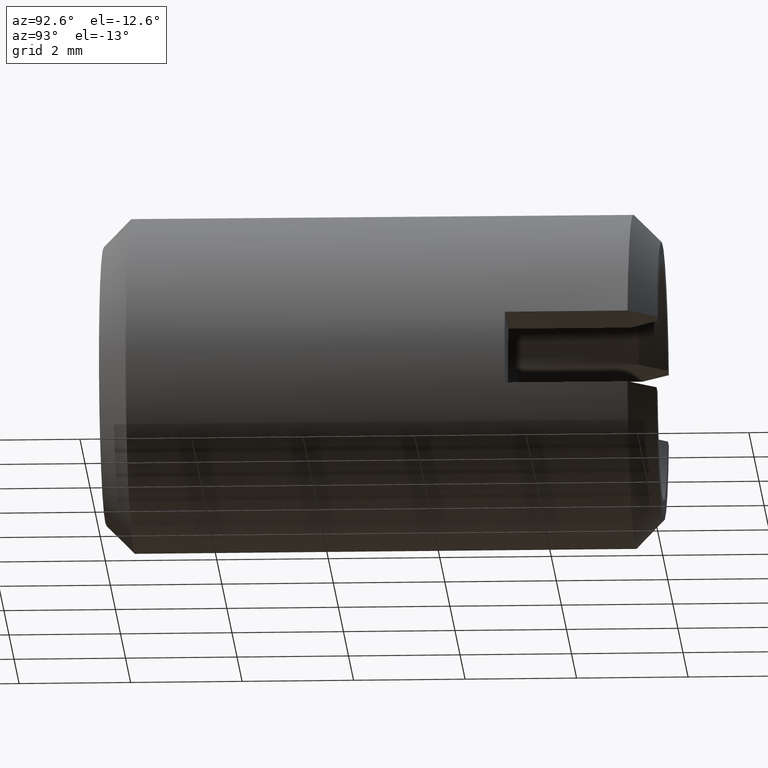
[diagram: clean part render]
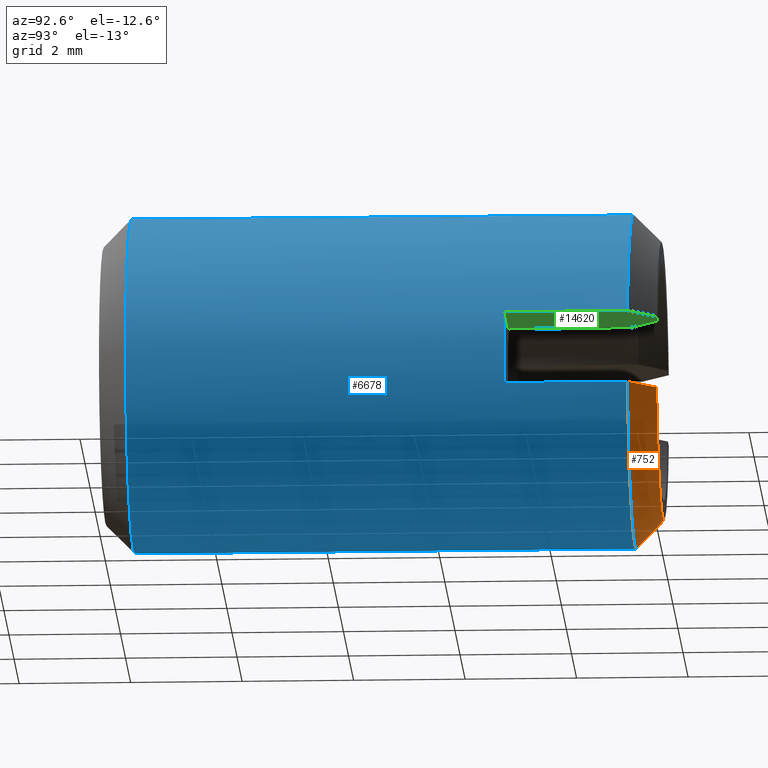
[diagram: same view with three faces highlighted in distinct colors, each labeled with its STEP entity id]
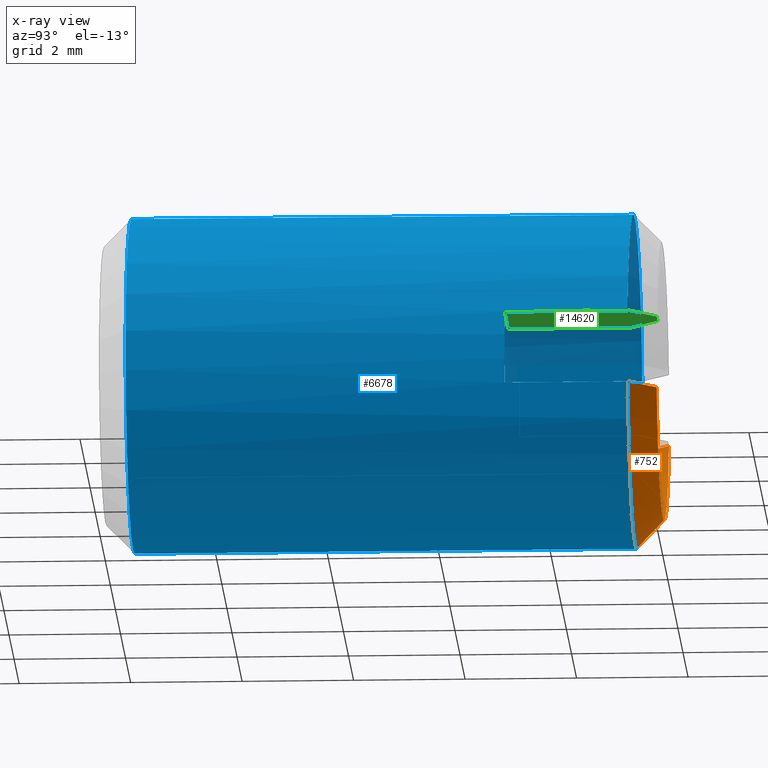
[diagram: x-ray of the same camera — body ghosted, the three highlighted faces saturated]
A machine part, auxiliary view with three faces highlighted in distinct colors.
The next image is the same camera in x-ray (body ghosted, the three faces saturated) — at least one of them is partly hidden behind the body in this view.
Their STEP definitions:

[orange] entity #752 — the highlighted conical surface has half-angle 45 deg.
#95 = CARTESIAN_POINT ( 'NONE',  ( 2.928736929121494600, 9.500000000000000000, -0.6500000000000001300 ) ) ;
#247 = VERTEX_POINT ( 'NONE', #6610 ) ;
#421 = DIRECTION ( 'NONE',  ( 0.0000000000000000000, 1.000000000000000000, 0.0000000000000000000 ) ) ;
#752 = ADVANCED_FACE ( 'NONE', ( #12432 ), #2395, .T. ) ;
#2395 = CONICAL_SURFACE ( 'NONE', #12111, 3.000000000000000000, 0.7853981633974500600 ) ;
#2588 = VERTEX_POINT ( 'NONE', #14591 ) ;
#2745 = B_SPLINE_CURVE_WITH_KNOTS ( 'NONE', 3,
 ( #12679, #5396, #2802, #9061 ),
 .UNSPECIFIED., .F., .F.,
 ( 4, 4 ),
 ( 0.01200799052394914200, 0.01272352744226161100 ),
 .UNSPECIFIED. ) ;
#2802 = CARTESIAN_POINT ( 'NONE',  ( -2.757581466765123500, 9.667089774407989100, -0.6499999999999994700 ) ) ;
#3609 = EDGE_CURVE ( 'NONE', #247, #2588, #11439, .T. ) ;
#3989 = VERTEX_POINT ( 'NONE', #12477 ) ;
#4845 = EDGE_CURVE ( 'NONE', #14891, #3989, #10666, .T. ) ;
#5396 = CARTESIAN_POINT ( 'NONE',  ( -2.586095618865053700, 9.833843787677890800, -0.6499999999999994700 ) ) ;
#5546 = EDGE_CURVE ( 'NONE', #3989, #247, #14303, .T. ) ;
#6371 = DIRECTION ( 'NONE',  ( 0.0000000000000000000, 0.0000000000000000000, 1.000000000000000000 ) ) ;
#6481 = CARTESIAN_POINT ( 'NONE',  ( 0.0000000000000000000, 9.500000000000000000, 0.0000000000000000000 ) ) ;
#6610 = CARTESIAN_POINT ( 'NONE',  ( 2.414021540914660100, 10.00000000000000000, -0.6500000000000001300 ) ) ;
#6651 = DIRECTION ( 'NONE',  ( -0.0000000000000000000, -1.000000000000000000, -0.0000000000000000000 ) ) ;
#7253 = CARTESIAN_POINT ( 'NONE',  ( 2.414021540914660100, 10.00000000000000000, -0.6500000000000001300 ) ) ;
#7297 = CARTESIAN_POINT ( 'NONE',  ( 2.757578815405588500, 9.667092362786181800, -0.6500000000000001300 ) ) ;
#7661 = CARTESIAN_POINT ( 'NONE',  ( 0.0000000000000000000, 10.00000000000000000, 0.0000000000000000000 ) ) ;
#7718 = DIRECTION ( 'NONE',  ( 0.0000000000000000000, 0.0000000000000000000, 1.000000000000000000 ) ) ;
#8013 = EDGE_LOOP ( 'NONE', ( #10440, #8153, #14981, #8222 ) ) ;
#8153 = ORIENTED_EDGE ( 'NONE', *, *, #4845, .F. ) ;
#8222 = ORIENTED_EDGE ( 'NONE', *, *, #3609, .F. ) ;
#8466 = CARTESIAN_POINT ( 'NONE',  ( 2.586092403099345300, 9.833846892848965700, -0.6500000000000001300 ) ) ;
#8470 = AXIS2_PLACEMENT_3D ( 'NONE', #6481, #10140, #6371 ) ;
#9061 = CARTESIAN_POINT ( 'NONE',  ( -2.928736929121496900, 9.499999999999998200, -0.6499999999999994700 ) ) ;
#10140 = DIRECTION ( 'NONE',  ( -0.0000000000000000000, -1.000000000000000000, -0.0000000000000000000 ) ) ;
#10440 = ORIENTED_EDGE ( 'NONE', *, *, #5546, .F. ) ;
#10666 = CIRCLE ( 'NONE', #8470, 3.000000000000000000 ) ;
#11182 = CARTESIAN_POINT ( 'NONE',  ( -2.928736929121496900, 9.499999999999998200, -0.6499999999999994700 ) ) ;
#11311 = CARTESIAN_POINT ( 'NONE',  ( 0.0000000000000000000, 9.500000000000000000, 0.0000000000000000000 ) ) ;
#11439 = CIRCLE ( 'NONE', #11490, 2.499999999999997800 ) ;
#11490 = AXIS2_PLACEMENT_3D ( 'NONE', #7661, #421, #7718 ) ;
#11969 = EDGE_CURVE ( 'NONE', #2588, #14891, #2745, .T. ) ;
#12111 = AXIS2_PLACEMENT_3D ( 'NONE', #11311, #6651, #13684 ) ;
#12432 = FACE_OUTER_BOUND ( 'NONE', #8013, .T. ) ;
#12477 = CARTESIAN_POINT ( 'NONE',  ( 2.928736929121494600, 9.500000000000000000, -0.6500000000000001300 ) ) ;
#12679 = CARTESIAN_POINT ( 'NONE',  ( -2.414021540914660100, 10.00000000000000000, -0.6499999999999994700 ) ) ;
#13684 = DIRECTION ( 'NONE',  ( 0.0000000000000000000, 0.0000000000000000000, -1.000000000000000000 ) ) ;
#14303 = B_SPLINE_CURVE_WITH_KNOTS ( 'NONE', 3,
 ( #95, #7297, #8466, #7253 ),
 .UNSPECIFIED., .F., .F.,
 ( 4, 4 ),
 ( 0.005136716158415988200, 0.005854303722699023000 ),
 .UNSPECIFIED. ) ;
#14591 = CARTESIAN_POINT ( 'NONE',  ( -2.414021540914660100, 10.00000000000000000, -0.6499999999999994700 ) ) ;
#14891 = VERTEX_POINT ( 'NONE', #11182 ) ;
#14981 = ORIENTED_EDGE ( 'NONE', *, *, #11969, .F. ) ;

[blue] entity #6678 — the highlighted cylindrical surface (bore or boss wall) has radius 3 mm, axis along (-0, -1, -0).
#936 = CIRCLE ( 'NONE', #15476, 3.000000000000000000 ) ;
#1006 = DIRECTION ( 'NONE',  ( -0.0000000000000000000, -1.000000000000000000, -0.0000000000000000000 ) ) ;
#1126 = CIRCLE ( 'NONE', #1577, 3.000000000000000000 ) ;
#1311 = VERTEX_POINT ( 'NONE', #13951 ) ;
#1436 = LINE ( 'NONE', #10542, #13926 ) ;
#1437 = ORIENTED_EDGE ( 'NONE', *, *, #11264, .T. ) ;
#1442 = EDGE_CURVE ( 'NONE', #1311, #2469, #7314, .T. ) ;
#1491 = EDGE_CURVE ( 'NONE', #14891, #6876, #1436, .T. ) ;
#1577 = AXIS2_PLACEMENT_3D ( 'NONE', #15683, #3372, #9374 ) ;
#1696 = FACE_OUTER_BOUND ( 'NONE', #9050, .T. ) ;
#2081 = VECTOR ( 'NONE', #11027, 1000.000000000000000 ) ;
#2115 = CARTESIAN_POINT ( 'NONE',  ( -2.928736929121493700, 0.0000000000000000000, 0.6500000000000002400 ) ) ;
#2188 = CIRCLE ( 'NONE', #2367, 3.000000000000000000 ) ;
#2216 = EDGE_CURVE ( 'NONE', #6876, #1311, #2188, .T. ) ;
#2367 = AXIS2_PLACEMENT_3D ( 'NONE', #12458, #9915, #12244 ) ;
#2469 = VERTEX_POINT ( 'NONE', #15617 ) ;
#2558 = CARTESIAN_POINT ( 'NONE',  ( 0.0000000000000000000, 0.0000000000000000000, 0.0000000000000000000 ) ) ;
#2565 = CARTESIAN_POINT ( 'NONE',  ( -2.928736929121494200, 7.299999999999999800, -0.6499999999999994700 ) ) ;
#3086 = DIRECTION ( 'NONE',  ( -0.0000000000000000000, 1.000000000000000000, -0.0000000000000000000 ) ) ;
#3372 = DIRECTION ( 'NONE',  ( -0.0000000000000000000, -1.000000000000000000, -0.0000000000000000000 ) ) ;
#3503 = ORIENTED_EDGE ( 'NONE', *, *, #1491, .F. ) ;
#3632 = VECTOR ( 'NONE', #1006, 1000.000000000000000 ) ;
#3935 = DIRECTION ( 'NONE',  ( 0.0000000000000000000, 0.0000000000000000000, -1.000000000000000000 ) ) ;
#3989 = VERTEX_POINT ( 'NONE', #12477 ) ;
#4059 = VECTOR ( 'NONE', #14319, 1000.000000000000000 ) ;
#4718 = LINE ( 'NONE', #11128, #2081 ) ;
#4845 = EDGE_CURVE ( 'NONE', #14891, #3989, #10666, .T. ) ;
#4902 = CARTESIAN_POINT ( 'NONE',  ( 2.928736929121494200, 7.299999999999999800, 0.6499999999999999100 ) ) ;
#5118 = ORIENTED_EDGE ( 'NONE', *, *, #1442, .F. ) ;
#5131 = ORIENTED_EDGE ( 'NONE', *, *, #12198, .T. ) ;
#5443 = CIRCLE ( 'NONE', #10529, 3.000000000000000000 ) ;
#5485 = DIRECTION ( 'NONE',  ( 4.440892098500626200E-015, 0.0000000000000000000, -1.000000000000000000 ) ) ;
#5861 = FACE_OUTER_BOUND ( 'NONE', #5979, .T. ) ;
#5979 = EDGE_LOOP ( 'NONE', ( #1437 ) ) ;
#6287 = CARTESIAN_POINT ( 'NONE',  ( 2.928736929121494200, 7.299999999999999800, -0.6500000000000001300 ) ) ;
#6313 = EDGE_CURVE ( 'NONE', #13269, #3989, #4718, .T. ) ;
#6371 = DIRECTION ( 'NONE',  ( 0.0000000000000000000, 0.0000000000000000000, 1.000000000000000000 ) ) ;
#6481 = CARTESIAN_POINT ( 'NONE',  ( 0.0000000000000000000, 9.500000000000000000, 0.0000000000000000000 ) ) ;
#6678 = ADVANCED_FACE ( 'NONE', ( #1696, #5861 ), #9846, .T. ) ;
#6851 = ORIENTED_EDGE ( 'NONE', *, *, #7714, .F. ) ;
#6876 = VERTEX_POINT ( 'NONE', #2565 ) ;
#7171 = ORIENTED_EDGE ( 'NONE', *, *, #4845, .T. ) ;
#7314 = LINE ( 'NONE', #2115, #4059 ) ;
#7508 = DIRECTION ( 'NONE',  ( 0.0000000000000000000, 1.000000000000000000, 0.0000000000000000000 ) ) ;
#7714 = EDGE_CURVE ( 'NONE', #11293, #11231, #8026, .T. ) ;
#8026 = LINE ( 'NONE', #15507, #3632 ) ;
#8470 = AXIS2_PLACEMENT_3D ( 'NONE', #6481, #10140, #6371 ) ;
#9050 = EDGE_LOOP ( 'NONE', ( #3503, #7171, #10519, #11131, #6851, #5131, #5118, #13408 ) ) ;
#9374 = DIRECTION ( 'NONE',  ( 0.0000000000000000000, 0.0000000000000000000, 1.000000000000000000 ) ) ;
#9469 = AXIS2_PLACEMENT_3D ( 'NONE', #2558, #11048, #13570 ) ;
#9846 = CYLINDRICAL_SURFACE ( 'NONE', #9469, 3.000000000000000000 ) ;
#9915 = DIRECTION ( 'NONE',  ( -0.0000000000000000000, 1.000000000000000000, -0.0000000000000000000 ) ) ;
#10140 = DIRECTION ( 'NONE',  ( -0.0000000000000000000, -1.000000000000000000, -0.0000000000000000000 ) ) ;
#10372 = CARTESIAN_POINT ( 'NONE',  ( 0.0000000000000000000, 7.299999999999999800, 0.0000000000000000000 ) ) ;
#10519 = ORIENTED_EDGE ( 'NONE', *, *, #6313, .F. ) ;
#10529 = AXIS2_PLACEMENT_3D ( 'NONE', #10372, #3086, #5485 ) ;
#10542 = CARTESIAN_POINT ( 'NONE',  ( -2.928736929121493700, 0.0000000000000000000, -0.6499999999999992500 ) ) ;
#10666 = CIRCLE ( 'NONE', #8470, 3.000000000000000000 ) ;
#11027 = DIRECTION ( 'NONE',  ( 0.0000000000000000000, 1.000000000000000000, 0.0000000000000000000 ) ) ;
#11048 = DIRECTION ( 'NONE',  ( -0.0000000000000000000, -1.000000000000000000, -0.0000000000000000000 ) ) ;
#11128 = CARTESIAN_POINT ( 'NONE',  ( 2.928736929121493700, 0.0000000000000000000, -0.6499999999999999100 ) ) ;
#11131 = ORIENTED_EDGE ( 'NONE', *, *, #12473, .F. ) ;
#11182 = CARTESIAN_POINT ( 'NONE',  ( -2.928736929121496900, 9.499999999999998200, -0.6499999999999994700 ) ) ;
#11231 = VERTEX_POINT ( 'NONE', #4902 ) ;
#11264 = EDGE_CURVE ( 'NONE', #11627, #11627, #936, .T. ) ;
#11293 = VERTEX_POINT ( 'NONE', #14691 ) ;
#11627 = VERTEX_POINT ( 'NONE', #12441 ) ;
#12198 = EDGE_CURVE ( 'NONE', #11293, #2469, #1126, .T. ) ;
#12244 = DIRECTION ( 'NONE',  ( 0.0000000000000000000, 0.0000000000000000000, -1.000000000000000000 ) ) ;
#12441 = CARTESIAN_POINT ( 'NONE',  ( 0.0000000000000000000, 0.5000000000000022200, -3.000000000000000000 ) ) ;
#12458 = CARTESIAN_POINT ( 'NONE',  ( 0.0000000000000000000, 7.299999999999999800, 0.0000000000000000000 ) ) ;
#12473 = EDGE_CURVE ( 'NONE', #11231, #13269, #5443, .T. ) ;
#12477 = CARTESIAN_POINT ( 'NONE',  ( 2.928736929121494600, 9.500000000000000000, -0.6500000000000001300 ) ) ;
#13269 = VERTEX_POINT ( 'NONE', #6287 ) ;
#13408 = ORIENTED_EDGE ( 'NONE', *, *, #2216, .F. ) ;
#13570 = DIRECTION ( 'NONE',  ( 0.0000000000000000000, 0.0000000000000000000, -1.000000000000000000 ) ) ;
#13683 = CARTESIAN_POINT ( 'NONE',  ( 0.0000000000000000000, 0.5000000000000022200, 0.0000000000000000000 ) ) ;
#13926 = VECTOR ( 'NONE', #15450, 1000.000000000000000 ) ;
#13951 = CARTESIAN_POINT ( 'NONE',  ( -2.928736929121494200, 7.299999999999999800, 0.6500000000000004700 ) ) ;
#14319 = DIRECTION ( 'NONE',  ( 0.0000000000000000000, 1.000000000000000000, 0.0000000000000000000 ) ) ;
#14691 = CARTESIAN_POINT ( 'NONE',  ( 2.928736929121496900, 9.499999999999998200, 0.6499999999999999100 ) ) ;
#14891 = VERTEX_POINT ( 'NONE', #11182 ) ;
#15450 = DIRECTION ( 'NONE',  ( -0.0000000000000000000, -1.000000000000000000, -0.0000000000000000000 ) ) ;
#15476 = AXIS2_PLACEMENT_3D ( 'NONE', #13683, #7508, #3935 ) ;
#15507 = CARTESIAN_POINT ( 'NONE',  ( 2.928736929121493700, 0.0000000000000000000, 0.6499999999999996900 ) ) ;
#15617 = CARTESIAN_POINT ( 'NONE',  ( -2.928736929121494200, 9.500000000000000000, 0.6500000000000004700 ) ) ;
#15683 = CARTESIAN_POINT ( 'NONE',  ( 0.0000000000000000000, 9.500000000000000000, 0.0000000000000000000 ) ) ;

[green] entity #14620 — the highlighted planar face has unit normal (0, 0, 1).
#377 = EDGE_CURVE ( 'NONE', #1728, #11293, #15597, .T. ) ;
#647 = CARTESIAN_POINT ( 'NONE',  ( 1.516575088810305100, 9.500000000000000000, 0.6499999999999998000 ) ) ;
#998 = LINE ( 'NONE', #10062, #13682 ) ;
#1006 = DIRECTION ( 'NONE',  ( -0.0000000000000000000, -1.000000000000000000, -0.0000000000000000000 ) ) ;
#1241 = CARTESIAN_POINT ( 'NONE',  ( 2.928736929121496900, 9.499999999999998200, 0.6499999999999999100 ) ) ;
#1409 = B_SPLINE_CURVE_WITH_KNOTS ( 'NONE', 3,
 ( #3613, #6119, #3714, #14577 ),
 .UNSPECIFIED., .F., .F.,
 ( 4, 4 ),
 ( 2.168404344971008600E-019, 0.0007306790628121094900 ),
 .UNSPECIFIED. ) ;
#1448 = CARTESIAN_POINT ( 'NONE',  ( 12.50000000000000400, 7.299999999999999800, 0.6499999999999986900 ) ) ;
#1728 = VERTEX_POINT ( 'NONE', #7981 ) ;
#1812 = DIRECTION ( 'NONE',  ( 1.000000000000000000, -0.0000000000000000000, -1.214306433183765000E-016 ) ) ;
#2614 = DIRECTION ( 'NONE',  ( 1.214306433183765000E-016, 0.0000000000000000000, 1.000000000000000000 ) ) ;
#2811 = CARTESIAN_POINT ( 'NONE',  ( 2.414021540914660100, 10.00000000000000000, 0.6499999999999999100 ) ) ;
#3305 = CARTESIAN_POINT ( 'NONE',  ( 2.049390153191919000, 10.00000000000000000, 0.6500000000000000200 ) ) ;
#3613 = CARTESIAN_POINT ( 'NONE',  ( 1.516575088810305100, 9.500000000000000000, 0.6499999999999998000 ) ) ;
#3632 = VECTOR ( 'NONE', #1006, 1000.000000000000000 ) ;
#3714 = CARTESIAN_POINT ( 'NONE',  ( 1.873091889638334800, 9.831951662627185200, 0.6500000000000000200 ) ) ;
#4274 = CARTESIAN_POINT ( 'NONE',  ( 12.50000000000000400, 10.00000000000000000, 0.6499999999999986900 ) ) ;
#4902 = CARTESIAN_POINT ( 'NONE',  ( 2.928736929121494200, 7.299999999999999800, 0.6499999999999999100 ) ) ;
#5298 = CARTESIAN_POINT ( 'NONE',  ( 2.586095618865052800, 9.833843787677890800, 0.6499999999999999100 ) ) ;
#5494 = EDGE_CURVE ( 'NONE', #9411, #13921, #1409, .T. ) ;
#6119 = CARTESIAN_POINT ( 'NONE',  ( 1.695895357052976000, 9.664819788930675100, 0.6500000000000000200 ) ) ;
#6353 = ORIENTED_EDGE ( 'NONE', *, *, #7714, .T. ) ;
#6866 = EDGE_CURVE ( 'NONE', #15343, #11231, #12231, .T. ) ;
#7054 = EDGE_CURVE ( 'NONE', #13921, #1728, #9294, .T. ) ;
#7183 = ORIENTED_EDGE ( 'NONE', *, *, #6866, .F. ) ;
#7507 = EDGE_CURVE ( 'NONE', #15343, #9411, #998, .T. ) ;
#7714 = EDGE_CURVE ( 'NONE', #11293, #11231, #8026, .T. ) ;
#7981 = CARTESIAN_POINT ( 'NONE',  ( 2.414021540914660100, 10.00000000000000000, 0.6499999999999999100 ) ) ;
#8026 = LINE ( 'NONE', #15507, #3632 ) ;
#8405 = ORIENTED_EDGE ( 'NONE', *, *, #7054, .T. ) ;
#8843 = FACE_OUTER_BOUND ( 'NONE', #12681, .T. ) ;
#9294 = LINE ( 'NONE', #4274, #11584 ) ;
#9411 = VERTEX_POINT ( 'NONE', #647 ) ;
#9975 = CARTESIAN_POINT ( 'NONE',  ( 2.757581466765122600, 9.667089774407989100, 0.6499999999999999100 ) ) ;
#9976 = DIRECTION ( 'NONE',  ( 1.000000000000000000, -0.0000000000000000000, -1.214306433183765000E-016 ) ) ;
#10023 = PLANE ( 'NONE',  #10884 ) ;
#10062 = CARTESIAN_POINT ( 'NONE',  ( 1.516575088810305100, 10.00000000000000000, 0.6499999999999998000 ) ) ;
#10884 = AXIS2_PLACEMENT_3D ( 'NONE', #1448, #2614, #11102 ) ;
#11098 = ORIENTED_EDGE ( 'NONE', *, *, #377, .T. ) ;
#11102 = DIRECTION ( 'NONE',  ( 1.000000000000000000, 0.0000000000000000000, -1.214306433183765000E-016 ) ) ;
#11231 = VERTEX_POINT ( 'NONE', #4902 ) ;
#11293 = VERTEX_POINT ( 'NONE', #14691 ) ;
#11584 = VECTOR ( 'NONE', #1812, 1000.000000000000000 ) ;
#12231 = LINE ( 'NONE', #14937, #15053 ) ;
#12681 = EDGE_LOOP ( 'NONE', ( #15104, #14339, #8405, #11098, #6353, #7183 ) ) ;
#12774 = CARTESIAN_POINT ( 'NONE',  ( 1.516575088810305300, 7.299999999999999800, 0.6500000000000000200 ) ) ;
#13682 = VECTOR ( 'NONE', #14971, 1000.000000000000000 ) ;
#13921 = VERTEX_POINT ( 'NONE', #3305 ) ;
#14339 = ORIENTED_EDGE ( 'NONE', *, *, #5494, .T. ) ;
#14577 = CARTESIAN_POINT ( 'NONE',  ( 2.049390153191919000, 10.00000000000000000, 0.6500000000000000200 ) ) ;
#14620 = ADVANCED_FACE ( 'NONE', ( #8843 ), #10023, .F. ) ;
#14691 = CARTESIAN_POINT ( 'NONE',  ( 2.928736929121496900, 9.499999999999998200, 0.6499999999999999100 ) ) ;
#14937 = CARTESIAN_POINT ( 'NONE',  ( 12.50000000000000400, 7.299999999999999800, 0.6499999999999986900 ) ) ;
#14971 = DIRECTION ( 'NONE',  ( -0.0000000000000000000, 1.000000000000000000, -0.0000000000000000000 ) ) ;
#15053 = VECTOR ( 'NONE', #9976, 1000.000000000000000 ) ;
#15104 = ORIENTED_EDGE ( 'NONE', *, *, #7507, .T. ) ;
#15343 = VERTEX_POINT ( 'NONE', #12774 ) ;
#15507 = CARTESIAN_POINT ( 'NONE',  ( 2.928736929121493700, 0.0000000000000000000, 0.6499999999999996900 ) ) ;
#15597 = B_SPLINE_CURVE_WITH_KNOTS ( 'NONE', 3,
 ( #2811, #5298, #9975, #1241 ),
 .UNSPECIFIED., .F., .F.,
 ( 4, 4 ),
 ( 0.01200799052394914400, 0.01272352744226161300 ),
 .UNSPECIFIED. ) ;